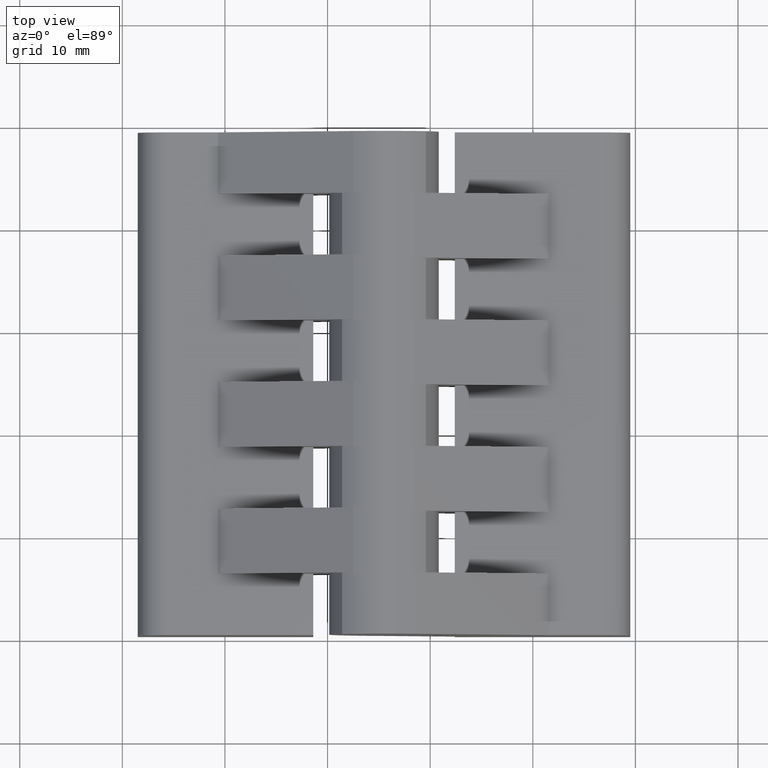
[diagram: clean part render]
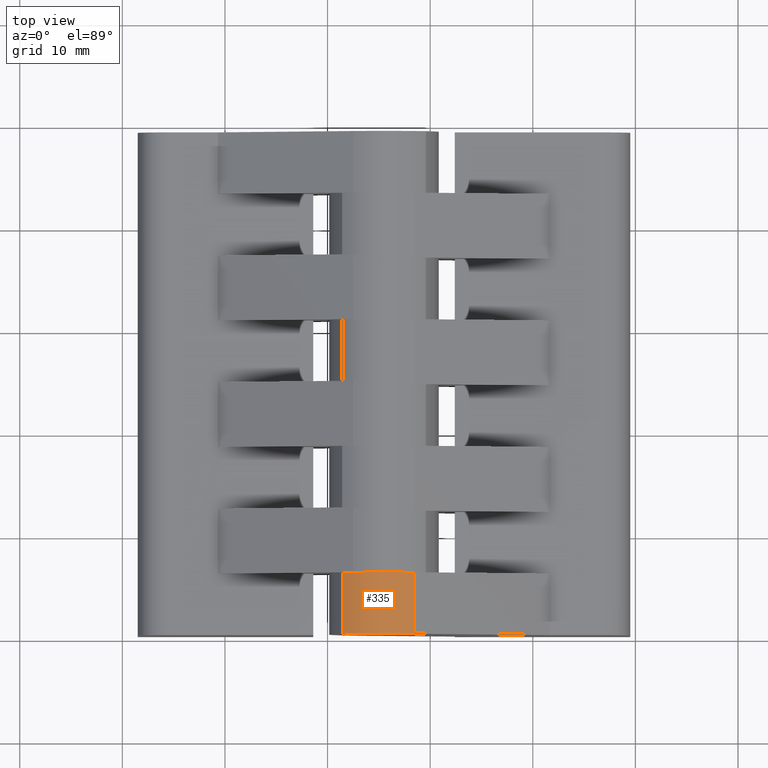
[diagram: same view with one face highlighted and labeled with its STEP entity id]
A machine part, top view. The second image highlights one B-rep face of the part: STEP entity #335.
In plain terms, the highlighted cylindrical surface (partial cylindrical patch) has radius 6 mm, axis along (-0, -1, 0).
Its self-contained STEP definition (entity closure, byte-faithful):
#179=CARTESIAN_POINT('',(18.499999999926018,-33.600000000037646,18.608072510316280));
#180=VERTEX_POINT('',#179);
#187=CARTESIAN_POINT('',(18.499999999926018,-39.600000000037646,18.608072510316280));
#188=VERTEX_POINT('',#187);
#189=CARTESIAN_POINT('',(18.499999999926018,-33.600000000037646,18.608072510316280));
#190=DIRECTION('',(0.0,-1.0,0.0));
#191=VECTOR('',#190,6.0);
#192=LINE('',#189,#191);
#193=EDGE_CURVE('',#180,#188,#192,.T.);
#303=CARTESIAN_POINT('',(15.499999999938154,9.399999999766358,13.411920087630676));
#304=DIRECTION('',(-3.081488E-033,-1.0,6.123234E-017));
#305=DIRECTION('',(0.500000000000001,5.302876E-017,0.866025403784438));
#306=AXIS2_PLACEMENT_3D('',#303,#304,#305);
#307=CYLINDRICAL_SURFACE('',#306,5.999999999975718);
#308=ORIENTED_EDGE('',*,*,#193,.F.);
#309=CARTESIAN_POINT('',(11.420340271182852,-33.600000000037646,17.811508306689465));
#310=VERTEX_POINT('',#309);
#311=CARTESIAN_POINT('',(15.499999999938158,-33.600000000037660,13.411920087630680));
#312=DIRECTION('',(3.081488E-033,1.000000000000000,-6.123234E-017));
#313=DIRECTION('',(0.500000000000001,5.302876E-017,0.866025403784438));
#314=AXIS2_PLACEMENT_3D('',#311,#312,#313);
#315=CIRCLE('',#314,5.999999999975718);
#316=EDGE_CURVE('',#310,#180,#315,.T.);
#317=ORIENTED_EDGE('',*,*,#316,.F.);
#318=CARTESIAN_POINT('',(11.420340271182852,-39.600000000037646,17.811508306689465));
#319=VERTEX_POINT('',#318);
#320=CARTESIAN_POINT('',(11.420340271182852,-33.600000000037646,17.811508306689465));
#321=DIRECTION('',(0.0,-1.0,0.0));
#322=VECTOR('',#321,6.0);
#323=LINE('',#320,#322);
#324=EDGE_CURVE('',#310,#319,#323,.T.);
#325=ORIENTED_EDGE('',*,*,#324,.T.);
#326=CARTESIAN_POINT('',(15.499999999938158,-39.600000000037660,13.411920087630680));
#327=DIRECTION('',(-3.081488E-033,-1.000000000000000,6.123234E-017));
#328=DIRECTION('',(0.500000000000001,5.302876E-017,0.866025403784438));
#329=AXIS2_PLACEMENT_3D('',#326,#327,#328);
#330=CIRCLE('',#329,5.999999999975718);
#331=EDGE_CURVE('',#188,#319,#330,.T.);
#332=ORIENTED_EDGE('',*,*,#331,.F.);
#333=EDGE_LOOP('',(#308,#317,#325,#332));
#334=FACE_OUTER_BOUND('',#333,.T.);
#335=ADVANCED_FACE('',(#334),#307,.T.);